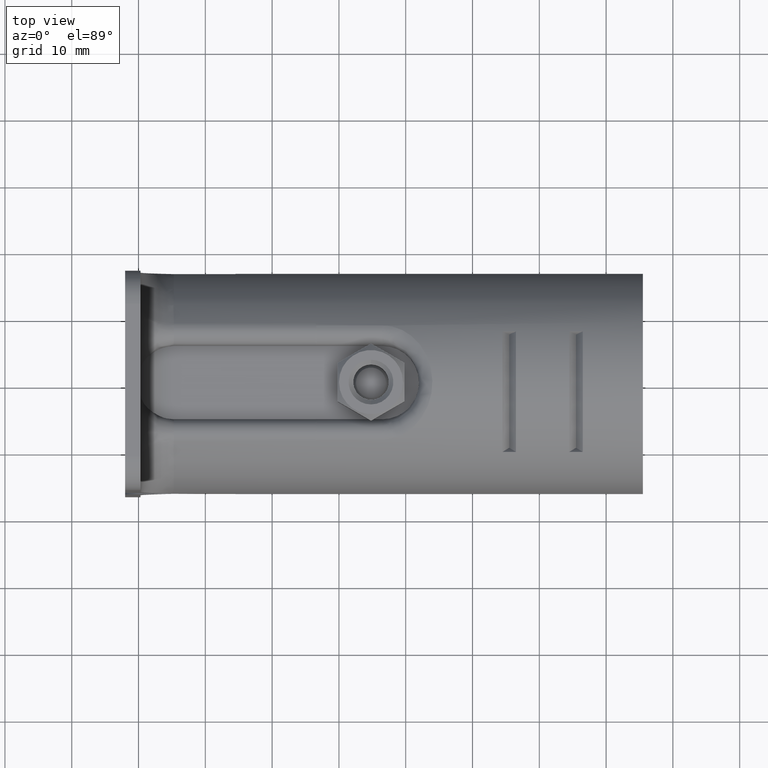
[diagram: clean part render]
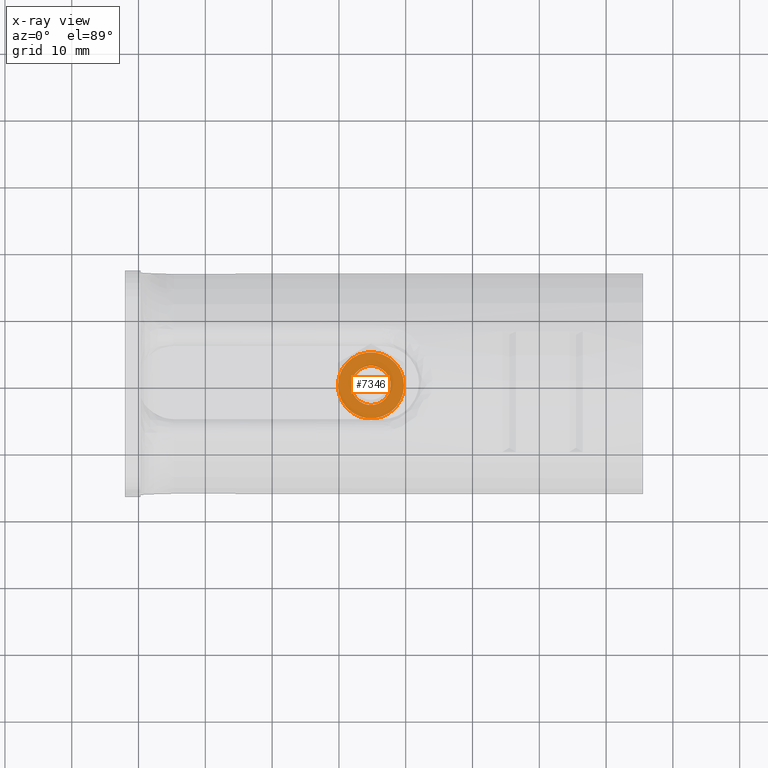
[diagram: x-ray — body ghosted, one internal face saturated and labeled with its STEP entity id]
A machine part, top view, then the same camera in x-ray: the body is ghosted and one INTERNAL B-rep face — a face not visible from any outside direction — is saturated and labeled: STEP entity #7346.
In plain terms, the highlighted planar face has unit normal (0, 0, 1).
Its self-contained STEP definition (entity closure, byte-faithful):
#392 = ORIENTED_EDGE ( 'NONE', *, *, #21500, .T. ) ;
#1067 = AXIS2_PLACEMENT_3D ( 'NONE', #3008, #17840, #21562 ) ;
#1159 = CARTESIAN_POINT ( 'NONE',  ( 27.75000000000000000, 0.000000000000000000, -12.49999999999999822 ) ) ;
#1315 = ORIENTED_EDGE ( 'NONE', *, *, #18021, .F. ) ;
#1752 = VERTEX_POINT ( 'NONE', #21272 ) ;
#2019 = DIRECTION ( 'NONE',  ( 1.000000000000000000, 0.000000000000000000, 0.000000000000000000 ) ) ;
#2734 = CARTESIAN_POINT ( 'NONE',  ( 24.80000000000000071, 0.000000000000000000, -12.49999999999999822 ) ) ;
#2991 = DIRECTION ( 'NONE',  ( 0.000000000000000000, 0.000000000000000000, 1.000000000000000000 ) ) ;
#3008 = CARTESIAN_POINT ( 'NONE',  ( 24.80000000000000071, 0.000000000000000000, -12.49999999999999822 ) ) ;
#4368 = AXIS2_PLACEMENT_3D ( 'NONE', #10303, #16979, #2019 ) ;
#4490 = CIRCLE ( 'NONE', #11085, 4.949999999999999289 ) ;
#4630 = DIRECTION ( 'NONE',  ( 0.000000000000000000, 0.000000000000000000, 1.000000000000000000 ) ) ;
#4935 = DIRECTION ( 'NONE',  ( 1.000000000000000000, 0.000000000000000000, 0.000000000000000000 ) ) ;
#6265 = EDGE_CURVE ( 'NONE', #1752, #19666, #17564, .T. ) ;
#7346 = ADVANCED_FACE ( 'NONE', ( #18206, #18413 ), #11941, .T. ) ;
#7602 = VERTEX_POINT ( 'NONE', #1159 ) ;
#9366 = DIRECTION ( 'NONE',  ( 0.000000000000000000, 0.000000000000000000, 1.000000000000000000 ) ) ;
#10303 = CARTESIAN_POINT ( 'NONE',  ( 24.80000000000000071, 0.000000000000000000, -12.49999999999999822 ) ) ;
#10435 = CIRCLE ( 'NONE', #1067, 2.950000000000001066 ) ;
#10455 = EDGE_LOOP ( 'NONE', ( #392, #19261 ) ) ;
#11085 = AXIS2_PLACEMENT_3D ( 'NONE', #2734, #9366, #12742 ) ;
#11267 = CARTESIAN_POINT ( 'NONE',  ( 24.80000000000000071, 0.000000000000000000, -12.49999999999999822 ) ) ;
#11941 = PLANE ( 'NONE',  #4368 ) ;
#12742 = DIRECTION ( 'NONE',  ( -1.000000000000000000, 0.000000000000000000, 0.000000000000000000 ) ) ;
#13297 = AXIS2_PLACEMENT_3D ( 'NONE', #15966, #4630, #19247 ) ;
#13346 = AXIS2_PLACEMENT_3D ( 'NONE', #11267, #2991, #4935 ) ;
#14915 = EDGE_CURVE ( 'NONE', #19984, #7602, #20368, .T. ) ;
#15829 = ORIENTED_EDGE ( 'NONE', *, *, #14915, .F. ) ;
#15966 = CARTESIAN_POINT ( 'NONE',  ( 24.80000000000000071, 0.000000000000000000, -12.49999999999999822 ) ) ;
#16979 = DIRECTION ( 'NONE',  ( 0.000000000000000000, 0.000000000000000000, 1.000000000000000000 ) ) ;
#17098 = CARTESIAN_POINT ( 'NONE',  ( 21.84999999999999787, 0.000000000000000000, -12.49999999999999822 ) ) ;
#17564 = CIRCLE ( 'NONE', #13346, 4.949999999999999289 ) ;
#17840 = DIRECTION ( 'NONE',  ( 0.000000000000000000, 0.000000000000000000, 1.000000000000000000 ) ) ;
#18021 = EDGE_CURVE ( 'NONE', #7602, #19984, #10435, .T. ) ;
#18206 = FACE_BOUND ( 'NONE', #21350, .T. ) ;
#18413 = FACE_OUTER_BOUND ( 'NONE', #10455, .T. ) ;
#19247 = DIRECTION ( 'NONE',  ( -1.000000000000000000, 0.000000000000000000, 0.000000000000000000 ) ) ;
#19261 = ORIENTED_EDGE ( 'NONE', *, *, #6265, .T. ) ;
#19577 = CARTESIAN_POINT ( 'NONE',  ( 19.84999999999999787, 0.000000000000000000, -12.49999999999999822 ) ) ;
#19666 = VERTEX_POINT ( 'NONE', #19577 ) ;
#19984 = VERTEX_POINT ( 'NONE', #17098 ) ;
#20368 = CIRCLE ( 'NONE', #13297, 2.950000000000001066 ) ;
#21272 = CARTESIAN_POINT ( 'NONE',  ( 29.75000000000000000, 0.000000000000000000, -12.49999999999999822 ) ) ;
#21350 = EDGE_LOOP ( 'NONE', ( #15829, #1315 ) ) ;
#21500 = EDGE_CURVE ( 'NONE', #19666, #1752, #4490, .T. ) ;
#21562 = DIRECTION ( 'NONE',  ( 1.000000000000000000, 0.000000000000000000, 0.000000000000000000 ) ) ;